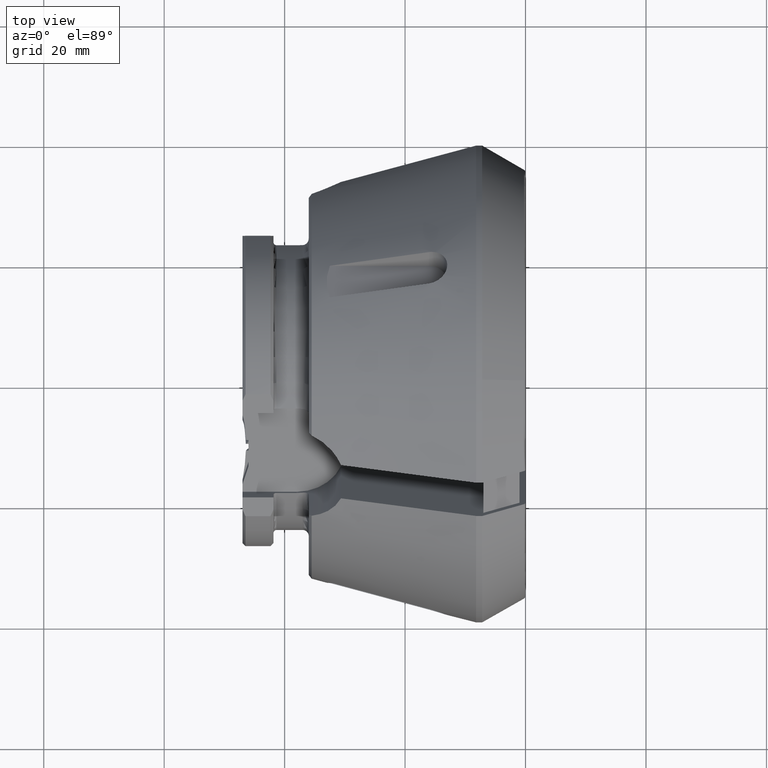
[diagram: clean part render]
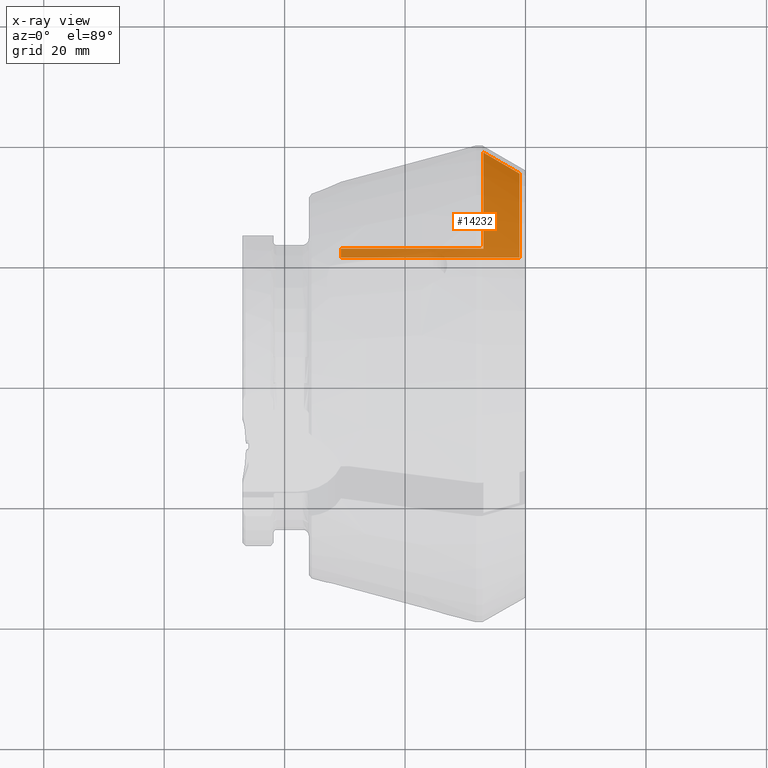
[diagram: x-ray — body ghosted, one internal face saturated and labeled with its STEP entity id]
A machine part, top view, then the same camera in x-ray: the body is ghosted and one INTERNAL B-rep face — a face not visible from any outside direction — is saturated and labeled: STEP entity #14232.
In plain terms, the highlighted planar face has unit normal (0, -0, -1).
Its self-contained STEP definition (entity closure, byte-faithful):
#305 = CARTESIAN_POINT ( 'NONE',  ( -6.999999999999998200, 22.50000000000000400, -3.149999999999999900 ) ) ;
#937 = CARTESIAN_POINT ( 'NONE',  ( -1.000000000000000900, 21.00000000000000000, -3.149999999999999900 ) ) ;
#1569 = CARTESIAN_POINT ( 'NONE',  ( -30.64625945521600400, 21.00000000000001100, -3.149999999999999900 ) ) ;
#2046 = AXIS2_PLACEMENT_3D ( 'NONE', #9260, #9237, #9193 ) ;
#3245 = VERTEX_POINT ( 'NONE', #17206 ) ;
#3431 = LINE ( 'NONE', #3671, #19066 ) ;
#3535 = DIRECTION ( 'NONE',  ( 8.348387173758450600E-017, -1.000000000000000000, -0.0000000000000000000 ) ) ;
#3671 = CARTESIAN_POINT ( 'NONE',  ( -30.64625945521600400, -2.345235059857491100, -3.149999999999998600 ) ) ;
#3728 = VERTEX_POINT ( 'NONE', #10310 ) ;
#4220 = LINE ( 'NONE', #16302, #11358 ) ;
#5459 = VECTOR ( 'NONE', #7712, 1000.000000000000000 ) ;
#5709 = VECTOR ( 'NONE', #16785, 999.9999999999998900 ) ;
#7189 = LINE ( 'NONE', #16926, #10255 ) ;
#7710 = CARTESIAN_POINT ( 'NONE',  ( -7.000000000000000900, 38.46410161513774300, -3.149999999999999900 ) ) ;
#7712 = DIRECTION ( 'NONE',  ( 1.629960317652839000E-016, -1.000000000000000000, 4.650733179562491100E-017 ) ) ;
#9193 = DIRECTION ( 'NONE',  ( 0.0000000000000000000, 1.000000000000000000, -4.650733179562491100E-017 ) ) ;
#9237 = DIRECTION ( 'NONE',  ( 0.0000000000000000000, -4.650733179562491100E-017, -1.000000000000000000 ) ) ;
#9260 = CARTESIAN_POINT ( 'NONE',  ( -47.00000000000000000, 21.00000000000001100, -3.149999999999999900 ) ) ;
#9415 = PLANE ( 'NONE',  #2046 ) ;
#9474 = DIRECTION ( 'NONE',  ( -1.000000000000000000, -3.558407130208836200E-016, 1.654920210685398000E-032 ) ) ;
#9865 = ORIENTED_EDGE ( 'NONE', *, *, #15520, .F. ) ;
#9904 = LINE ( 'NONE', #305, #10841 ) ;
#10002 = EDGE_CURVE ( 'NONE', #14940, #14988, #7189, .T. ) ;
#10218 = VERTEX_POINT ( 'NONE', #14225 ) ;
#10255 = VECTOR ( 'NONE', #16815, 1000.000000000000000 ) ;
#10310 = CARTESIAN_POINT ( 'NONE',  ( -7.000000000000000900, 38.46410161513774300, -3.149999999999999900 ) ) ;
#10375 = VERTEX_POINT ( 'NONE', #12868 ) ;
#10841 = VECTOR ( 'NONE', #9474, 1000.000000000000000 ) ;
#10975 = ORIENTED_EDGE ( 'NONE', *, *, #13594, .F. ) ;
#11358 = VECTOR ( 'NONE', #15531, 1000.000000000000000 ) ;
#12229 = ORIENTED_EDGE ( 'NONE', *, *, #19342, .F. ) ;
#12501 = ORIENTED_EDGE ( 'NONE', *, *, #14357, .F. ) ;
#12868 = CARTESIAN_POINT ( 'NONE',  ( -30.64625945521600400, 22.50000000000000400, -3.149999999999999900 ) ) ;
#13594 = EDGE_CURVE ( 'NONE', #3245, #3728, #18751, .T. ) ;
#14225 = CARTESIAN_POINT ( 'NONE',  ( -6.999999999999998200, 22.50000000000000400, -3.149999999999999000 ) ) ;
#14232 = ADVANCED_FACE ( 'NONE', ( #16456 ), #9415, .T. ) ;
#14357 = EDGE_CURVE ( 'NONE', #3728, #10218, #17638, .T. ) ;
#14940 = VERTEX_POINT ( 'NONE', #1569 ) ;
#14988 = VERTEX_POINT ( 'NONE', #937 ) ;
#15520 = EDGE_CURVE ( 'NONE', #14988, #3245, #4220, .T. ) ;
#15522 = ORIENTED_EDGE ( 'NONE', *, *, #17471, .F. ) ;
#15531 = DIRECTION ( 'NONE',  ( -3.252606517456512800E-016, 1.000000000000000000, -4.650733179562491100E-017 ) ) ;
#15660 = EDGE_LOOP ( 'NONE', ( #15522, #12229, #12501, #10975, #9865, #16936 ) ) ;
#16302 = CARTESIAN_POINT ( 'NONE',  ( -1.000000000000000900, 21.00000000000000400, -3.149999999999999900 ) ) ;
#16456 = FACE_OUTER_BOUND ( 'NONE', #15660, .T. ) ;
#16785 = DIRECTION ( 'NONE',  ( -0.8660254037844396000, 0.4999999999999983900, -2.325366589781238100E-017 ) ) ;
#16815 = DIRECTION ( 'NONE',  ( 1.000000000000000000, 0.0000000000000000000, 0.0000000000000000000 ) ) ;
#16823 = CARTESIAN_POINT ( 'NONE',  ( -1.000000000000006200, 35.00000000000000000, -3.149999999999999900 ) ) ;
#16926 = CARTESIAN_POINT ( 'NONE',  ( -45.99999999999998600, 21.00000000000000000, -3.149999999999999900 ) ) ;
#16936 = ORIENTED_EDGE ( 'NONE', *, *, #10002, .F. ) ;
#17206 = CARTESIAN_POINT ( 'NONE',  ( -1.000000000000005600, 35.00000000000000000, -3.149999999999999900 ) ) ;
#17471 = EDGE_CURVE ( 'NONE', #10375, #14940, #3431, .T. ) ;
#17638 = LINE ( 'NONE', #7710, #5459 ) ;
#18751 = LINE ( 'NONE', #16823, #5709 ) ;
#19066 = VECTOR ( 'NONE', #3535, 1000.000000000000000 ) ;
#19342 = EDGE_CURVE ( 'NONE', #10218, #10375, #9904, .T. ) ;